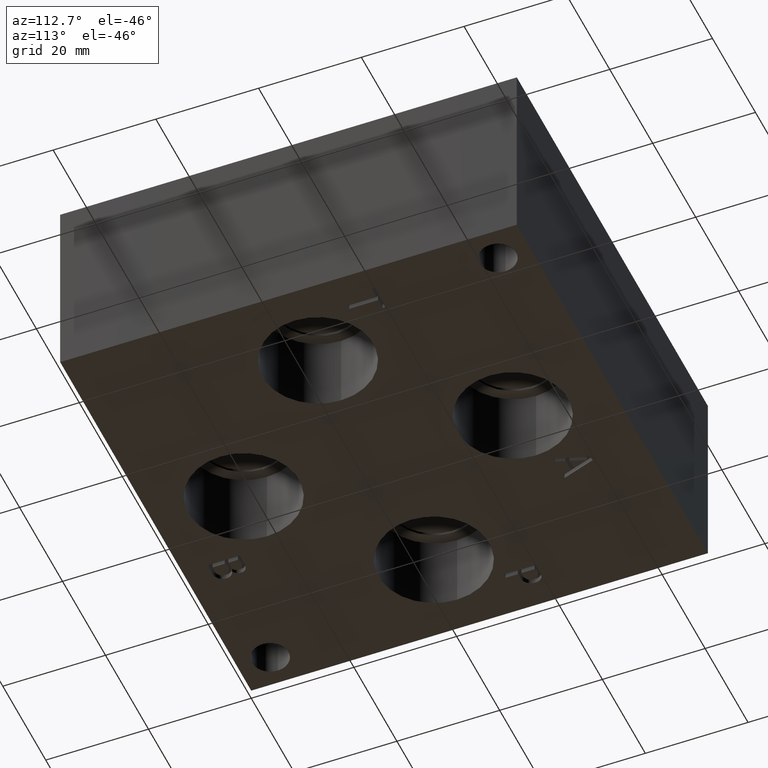
[diagram: clean part render]
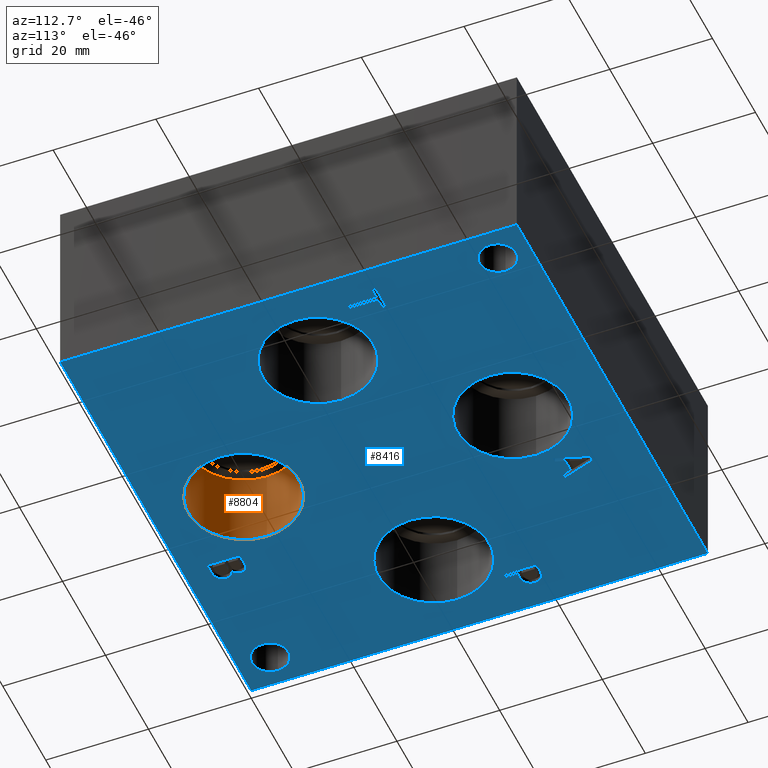
[diagram: same view with the hole feature highlighted: cylindrical wall and planar end face, labeled with their STEP entity ids]
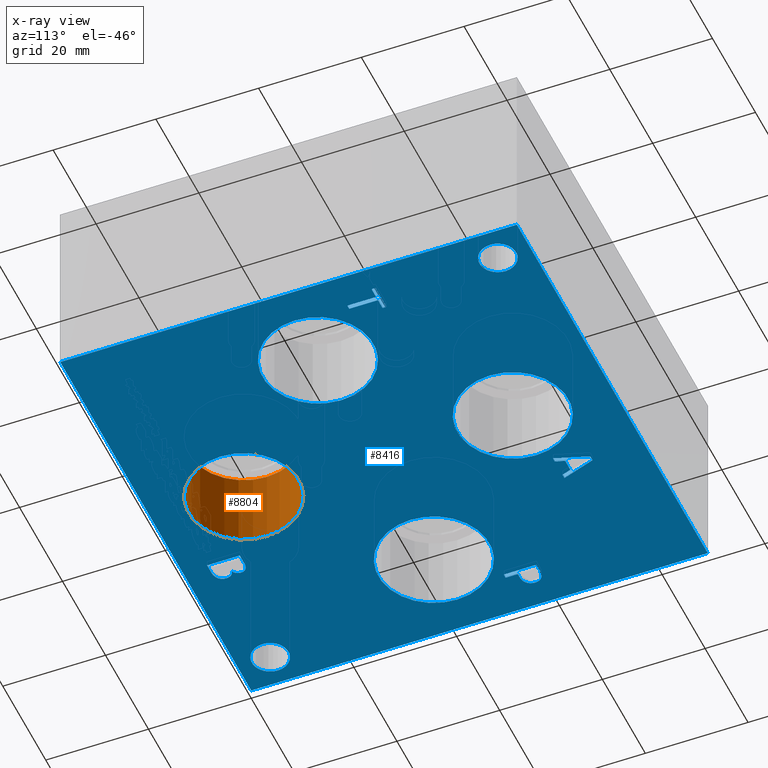
[diagram: x-ray of the same camera — body ghosted, the hole faces saturated]
A machine part, auxiliary view. The highlighted faces form one hole feature of diameter 21.59 mm: the cylindrical wall (entity #8804, orange) and its adjacent planar end face (entity #8416, blue) — they share a circular edge in the B-rep.
The next image is the same camera in x-ray (body ghosted, the hole faces saturated) — the bore reads through the body.
Wall:
#18=CYLINDRICAL_SURFACE('',#9158,10.795);
#56=CIRCLE('',#8876,10.795);
#57=CIRCLE('',#8877,10.795);
#74=CIRCLE('',#9155,10.795);
#75=CIRCLE('',#9156,10.795);
#886=FACE_OUTER_BOUND('',#1381,.T.);
#1381=EDGE_LOOP('',(#7663,#7664,#7665,#7666,#7667,#7668));
#2263=LINE('',#14941,#3119);
#3119=VECTOR('',#10681,10.795);
#3471=VERTEX_POINT('',#11164);
#3472=VERTEX_POINT('',#11165);
#4170=VERTEX_POINT('',#14934);
#4171=VERTEX_POINT('',#14935);
#4312=EDGE_CURVE('',#3471,#3472,#56,.T.);
#4313=EDGE_CURVE('',#3472,#3471,#57,.T.);
#5358=EDGE_CURVE('',#4170,#4171,#74,.T.);
#5359=EDGE_CURVE('',#4171,#4170,#75,.T.);
#5361=EDGE_CURVE('',#3472,#4171,#2263,.T.);
#7663=ORIENTED_EDGE('',*,*,#4312,.F.);
#7664=ORIENTED_EDGE('',*,*,#4313,.F.);
#7665=ORIENTED_EDGE('',*,*,#5361,.T.);
#7666=ORIENTED_EDGE('',*,*,#5358,.F.);
#7667=ORIENTED_EDGE('',*,*,#5359,.F.);
#7668=ORIENTED_EDGE('',*,*,#5361,.F.);
#8804=ADVANCED_FACE('',(#886),#18,.F.);
#8876=AXIS2_PLACEMENT_3D('',#11166,#9339,#9340);
#8877=AXIS2_PLACEMENT_3D('',#11167,#9341,#9342);
#9155=AXIS2_PLACEMENT_3D('',#14936,#10673,#10674);
#9156=AXIS2_PLACEMENT_3D('',#14937,#10675,#10676);
#9158=AXIS2_PLACEMENT_3D('',#14940,#10679,#10680);
#9339=DIRECTION('center_axis',(0.,0.,1.));
#9340=DIRECTION('ref_axis',(1.,0.,0.));
#9341=DIRECTION('center_axis',(0.,0.,1.));
#9342=DIRECTION('ref_axis',(1.,0.,0.));
#10673=DIRECTION('center_axis',(0.,0.,-1.));
#10674=DIRECTION('ref_axis',(1.,0.,0.));
#10675=DIRECTION('center_axis',(0.,0.,-1.));
#10676=DIRECTION('ref_axis',(1.,0.,0.));
#10679=DIRECTION('center_axis',(0.,0.,-1.));
#10680=DIRECTION('ref_axis',(1.,0.,0.));
#10681=DIRECTION('',(0.,0.,1.));
#11164=CARTESIAN_POINT('',(56.0324,17.4625,0.));
#11165=CARTESIAN_POINT('',(34.4424,17.4625,0.));
#11166=CARTESIAN_POINT('Origin',(45.2374,17.4625,0.));
#11167=CARTESIAN_POINT('Origin',(45.2374,17.4625,0.));
#14934=CARTESIAN_POINT('',(56.0324,17.4625,15.367));
#14935=CARTESIAN_POINT('',(34.4424,17.4625,15.367));
#14936=CARTESIAN_POINT('Origin',(45.2374,17.4625,15.367));
#14937=CARTESIAN_POINT('Origin',(45.2374,17.4625,15.367));
#14940=CARTESIAN_POINT('Origin',(45.2374,17.4625,7.6835));
#14941=CARTESIAN_POINT('',(34.4424,17.4625,7.6835));
End face:
#52=CIRCLE('',#8872,10.795);
#53=CIRCLE('',#8873,10.795);
#54=CIRCLE('',#8874,10.795);
#55=CIRCLE('',#8875,10.795);
#56=CIRCLE('',#8876,10.795);
#57=CIRCLE('',#8877,10.795);
#58=CIRCLE('',#8878,10.795);
#59=CIRCLE('',#8879,10.795);
#60=CIRCLE('',#8880,3.5687);
#61=CIRCLE('',#8881,3.5687);
#141=FACE_BOUND('',#949,.T.);
#142=FACE_BOUND('',#950,.T.);
#143=FACE_BOUND('',#951,.T.);
#144=FACE_BOUND('',#952,.T.);
#145=FACE_BOUND('',#953,.T.);
#146=FACE_BOUND('',#954,.T.);
#147=FACE_BOUND('',#955,.T.);
#148=FACE_BOUND('',#956,.T.);
#149=FACE_BOUND('',#957,.T.);
#150=FACE_BOUND('',#958,.T.);
#213=PLANE('',#8871);
#498=FACE_OUTER_BOUND('',#948,.T.);
#948=EDGE_LOOP('',(#5540,#5541,#5542,#5543));
#949=EDGE_LOOP('',(#5544,#5545,#5546,#5547,#5548,#5549,#5550,#5551));
#950=EDGE_LOOP('',(#5552,#5553));
#951=EDGE_LOOP('',(#5554,#5555));
#952=EDGE_LOOP('',(#5556,#5557));
#953=EDGE_LOOP('',(#5558,#5559));
#954=EDGE_LOOP('',(#5560));
#955=EDGE_LOOP('',(#5561));
#956=EDGE_LOOP('',(#5562,#5563,#5564,#5565,#5566,#5567,#5568,#5569,#5570,
#5571));
#957=EDGE_LOOP('',(#5572,#5573,#5574,#5575,#5576,#5577,#5578,#5579));
#958=EDGE_LOOP('',(#5580,#5581,#5582,#5583,#5584,#5585,#5586,#5587,#5588));
#1459=LINE('',#11067,#2315);
#1462=LINE('',#11073,#2318);
#1465=LINE('',#11079,#2321);
#1468=LINE('',#11085,#2324);
#1471=LINE('',#11091,#2327);
#1475=LINE('',#11134,#2331);
#1476=LINE('',#11136,#2332);
#1477=LINE('',#11138,#2333);
#1478=LINE('',#11139,#2334);
#1479=LINE('',#11142,#2335);
#1480=LINE('',#11144,#2336);
#1481=LINE('',#11146,#2337);
#1482=LINE('',#11148,#2338);
#1483=LINE('',#11150,#2339);
#1484=LINE('',#11152,#2340);
#1485=LINE('',#11154,#2341);
#1486=LINE('',#11155,#2342);
#1487=LINE('',#11193,#2343);
#1488=LINE('',#11195,#2344);
#1489=LINE('',#11197,#2345);
#1490=LINE('',#11213,#2346);
#1491=LINE('',#11216,#2347);
#1492=LINE('',#11218,#2348);
#1493=LINE('',#11220,#2349);
#1494=LINE('',#11222,#2350);
#1495=LINE('',#11224,#2351);
#1496=LINE('',#11226,#2352);
#1497=LINE('',#11228,#2353);
#1498=LINE('',#11229,#2354);
#2315=VECTOR('',#9291,10.);
#2318=VECTOR('',#9296,10.);
#2321=VECTOR('',#9301,10.);
#2324=VECTOR('',#9306,10.);
#2327=VECTOR('',#9311,10.);
#2331=VECTOR('',#9319,10.);
#2332=VECTOR('',#9320,10.);
#2333=VECTOR('',#9321,10.);
#2334=VECTOR('',#9322,10.);
#2335=VECTOR('',#9323,10.);
#2336=VECTOR('',#9324,10.);
#2337=VECTOR('',#9325,10.);
#2338=VECTOR('',#9326,10.);
#2339=VECTOR('',#9327,10.);
#2340=VECTOR('',#9328,10.);
#2341=VECTOR('',#9329,10.);
#2342=VECTOR('',#9330,10.);
#2343=VECTOR('',#9351,10.);
#2344=VECTOR('',#9352,10.);
#2345=VECTOR('',#9353,10.);
#2346=VECTOR('',#9354,10.);
#2347=VECTOR('',#9355,10.);
#2348=VECTOR('',#9356,10.);
#2349=VECTOR('',#9357,10.);
#2350=VECTOR('',#9358,10.);
#2351=VECTOR('',#9359,10.);
#2352=VECTOR('',#9360,10.);
#2353=VECTOR('',#9361,10.);
#2354=VECTOR('',#9362,10.);
#3163=B_SPLINE_CURVE_WITH_KNOTS('',2,(#11034,#11035,#11036,#11037),
 .UNSPECIFIED.,.F.,.F.,(3,1,3),(0.,1.,2.),.UNSPECIFIED.);
#3165=B_SPLINE_CURVE_WITH_KNOTS('',2,(#11055,#11056,#11057,#11058),
 .UNSPECIFIED.,.F.,.F.,(3,1,3),(0.,1.,2.),.UNSPECIFIED.);
#3167=B_SPLINE_CURVE_WITH_KNOTS('',2,(#11104,#11105,#11106,#11107),
 .UNSPECIFIED.,.F.,.F.,(3,1,3),(0.,1.,2.),.UNSPECIFIED.);
#3169=B_SPLINE_CURVE_WITH_KNOTS('',2,(#11122,#11123,#11124,#11125),
 .UNSPECIFIED.,.F.,.F.,(3,1,3),(0.,1.,2.),.UNSPECIFIED.);
#3171=B_SPLINE_CURVE_WITH_KNOTS('',2,(#11178,#11179,#11180,#11181),
 .UNSPECIFIED.,.F.,.F.,(3,1,3),(0.,1.,2.),.UNSPECIFIED.);
#3172=B_SPLINE_CURVE_WITH_KNOTS('',2,(#11183,#11184,#11185,#11186),
 .UNSPECIFIED.,.F.,.F.,(3,1,3),(0.,1.,2.),.UNSPECIFIED.);
#3173=B_SPLINE_CURVE_WITH_KNOTS('',2,(#11188,#11189,#11190,#11191),
 .UNSPECIFIED.,.F.,.F.,(3,1,3),(0.,1.,2.),.UNSPECIFIED.);
#3174=B_SPLINE_CURVE_WITH_KNOTS('',2,(#11199,#11200,#11201,#11202),
 .UNSPECIFIED.,.F.,.F.,(3,1,3),(0.,1.,2.),.UNSPECIFIED.);
#3175=B_SPLINE_CURVE_WITH_KNOTS('',2,(#11204,#11205,#11206,#11207),
 .UNSPECIFIED.,.F.,.F.,(3,1,3),(0.,1.,2.),.UNSPECIFIED.);
#3176=B_SPLINE_CURVE_WITH_KNOTS('',2,(#11209,#11210,#11211,#11212),
 .UNSPECIFIED.,.F.,.F.,(3,1,3),(0.,1.,2.),.UNSPECIFIED.);
#3437=VERTEX_POINT('',#11032);
#3438=VERTEX_POINT('',#11033);
#3441=VERTEX_POINT('',#11054);
#3443=VERTEX_POINT('',#11066);
#3445=VERTEX_POINT('',#11072);
#3447=VERTEX_POINT('',#11078);
#3449=VERTEX_POINT('',#11084);
#3451=VERTEX_POINT('',#11090);
#3453=VERTEX_POINT('',#11103);
#3455=VERTEX_POINT('',#11132);
#3456=VERTEX_POINT('',#11133);
#3457=VERTEX_POINT('',#11135);
#3458=VERTEX_POINT('',#11137);
#3459=VERTEX_POINT('',#11140);
#3460=VERTEX_POINT('',#11141);
#3461=VERTEX_POINT('',#11143);
#3462=VERTEX_POINT('',#11145);
#3463=VERTEX_POINT('',#11147);
#3464=VERTEX_POINT('',#11149);
#3465=VERTEX_POINT('',#11151);
#3466=VERTEX_POINT('',#11153);
#3467=VERTEX_POINT('',#11156);
#3468=VERTEX_POINT('',#11157);
#3469=VERTEX_POINT('',#11160);
#3470=VERTEX_POINT('',#11161);
#3471=VERTEX_POINT('',#11164);
#3472=VERTEX_POINT('',#11165);
#3473=VERTEX_POINT('',#11168);
#3474=VERTEX_POINT('',#11169);
#3475=VERTEX_POINT('',#11172);
#3476=VERTEX_POINT('',#11174);
#3477=VERTEX_POINT('',#11176);
#3478=VERTEX_POINT('',#11177);
#3479=VERTEX_POINT('',#11182);
#3480=VERTEX_POINT('',#11187);
#3481=VERTEX_POINT('',#11192);
#3482=VERTEX_POINT('',#11194);
#3483=VERTEX_POINT('',#11196);
#3484=VERTEX_POINT('',#11198);
#3485=VERTEX_POINT('',#11203);
#3486=VERTEX_POINT('',#11208);
#3487=VERTEX_POINT('',#11214);
#3488=VERTEX_POINT('',#11215);
#3489=VERTEX_POINT('',#11217);
#3490=VERTEX_POINT('',#11219);
#3491=VERTEX_POINT('',#11221);
#3492=VERTEX_POINT('',#11223);
#3493=VERTEX_POINT('',#11225);
#3494=VERTEX_POINT('',#11227);
#4269=EDGE_CURVE('',#3437,#3438,#3163,.T.);
#4273=EDGE_CURVE('',#3441,#3437,#3165,.T.);
#4276=EDGE_CURVE('',#3443,#3441,#1459,.T.);
#4279=EDGE_CURVE('',#3445,#3443,#1462,.T.);
#4282=EDGE_CURVE('',#3447,#3445,#1465,.T.);
#4285=EDGE_CURVE('',#3449,#3447,#1468,.T.);
#4288=EDGE_CURVE('',#3451,#3449,#1471,.T.);
#4291=EDGE_CURVE('',#3453,#3451,#3167,.T.);
#4294=EDGE_CURVE('',#3438,#3453,#3169,.T.);
#4296=EDGE_CURVE('',#3455,#3456,#1475,.T.);
#4297=EDGE_CURVE('',#3457,#3455,#1476,.T.);
#4298=EDGE_CURVE('',#3458,#3457,#1477,.T.);
#4299=EDGE_CURVE('',#3456,#3458,#1478,.T.);
#4300=EDGE_CURVE('',#3459,#3460,#1479,.T.);
#4301=EDGE_CURVE('',#3460,#3461,#1480,.T.);
#4302=EDGE_CURVE('',#3461,#3462,#1481,.T.);
#4303=EDGE_CURVE('',#3462,#3463,#1482,.T.);
#4304=EDGE_CURVE('',#3463,#3464,#1483,.T.);
#4305=EDGE_CURVE('',#3464,#3465,#1484,.T.);
#4306=EDGE_CURVE('',#3465,#3466,#1485,.T.);
#4307=EDGE_CURVE('',#3466,#3459,#1486,.T.);
#4308=EDGE_CURVE('',#3467,#3468,#52,.T.);
#4309=EDGE_CURVE('',#3468,#3467,#53,.T.);
#4310=EDGE_CURVE('',#3469,#3470,#54,.T.);
#4311=EDGE_CURVE('',#3470,#3469,#55,.T.);
#4312=EDGE_CURVE('',#3471,#3472,#56,.T.);
#4313=EDGE_CURVE('',#3472,#3471,#57,.T.);
#4314=EDGE_CURVE('',#3473,#3474,#58,.T.);
#4315=EDGE_CURVE('',#3474,#3473,#59,.T.);
#4316=EDGE_CURVE('',#3475,#3475,#60,.T.);
#4317=EDGE_CURVE('',#3476,#3476,#61,.T.);
#4318=EDGE_CURVE('',#3477,#3478,#3171,.T.);
#4319=EDGE_CURVE('',#3478,#3479,#3172,.T.);
#4320=EDGE_CURVE('',#3479,#3480,#3173,.T.);
#4321=EDGE_CURVE('',#3480,#3481,#1487,.T.);
#4322=EDGE_CURVE('',#3481,#3482,#1488,.T.);
#4323=EDGE_CURVE('',#3482,#3483,#1489,.T.);
#4324=EDGE_CURVE('',#3483,#3484,#3174,.T.);
#4325=EDGE_CURVE('',#3484,#3485,#3175,.T.);
#4326=EDGE_CURVE('',#3485,#3486,#3176,.T.);
#4327=EDGE_CURVE('',#3486,#3477,#1490,.T.);
#4328=EDGE_CURVE('',#3487,#3488,#1491,.T.);
#4329=EDGE_CURVE('',#3488,#3489,#1492,.T.);
#4330=EDGE_CURVE('',#3489,#3490,#1493,.T.);
#4331=EDGE_CURVE('',#3490,#3491,#1494,.T.);
#4332=EDGE_CURVE('',#3491,#3492,#1495,.T.);
#4333=EDGE_CURVE('',#3492,#3493,#1496,.T.);
#4334=EDGE_CURVE('',#3493,#3494,#1497,.T.);
#4335=EDGE_CURVE('',#3494,#3487,#1498,.T.);
#5540=ORIENTED_EDGE('',*,*,#4296,.F.);
#5541=ORIENTED_EDGE('',*,*,#4297,.F.);
#5542=ORIENTED_EDGE('',*,*,#4298,.F.);
#5543=ORIENTED_EDGE('',*,*,#4299,.F.);
#5544=ORIENTED_EDGE('',*,*,#4300,.T.);
#5545=ORIENTED_EDGE('',*,*,#4301,.T.);
#5546=ORIENTED_EDGE('',*,*,#4302,.T.);
#5547=ORIENTED_EDGE('',*,*,#4303,.T.);
#5548=ORIENTED_EDGE('',*,*,#4304,.T.);
#5549=ORIENTED_EDGE('',*,*,#4305,.T.);
#5550=ORIENTED_EDGE('',*,*,#4306,.T.);
#5551=ORIENTED_EDGE('',*,*,#4307,.T.);
#5552=ORIENTED_EDGE('',*,*,#4308,.T.);
#5553=ORIENTED_EDGE('',*,*,#4309,.T.);
#5554=ORIENTED_EDGE('',*,*,#4310,.T.);
#5555=ORIENTED_EDGE('',*,*,#4311,.T.);
#5556=ORIENTED_EDGE('',*,*,#4312,.T.);
#5557=ORIENTED_EDGE('',*,*,#4313,.T.);
#5558=ORIENTED_EDGE('',*,*,#4314,.T.);
#5559=ORIENTED_EDGE('',*,*,#4315,.T.);
#5560=ORIENTED_EDGE('',*,*,#4316,.T.);
#5561=ORIENTED_EDGE('',*,*,#4317,.T.);
#5562=ORIENTED_EDGE('',*,*,#4318,.T.);
#5563=ORIENTED_EDGE('',*,*,#4319,.T.);
#5564=ORIENTED_EDGE('',*,*,#4320,.T.);
#5565=ORIENTED_EDGE('',*,*,#4321,.T.);
#5566=ORIENTED_EDGE('',*,*,#4322,.T.);
#5567=ORIENTED_EDGE('',*,*,#4323,.T.);
#5568=ORIENTED_EDGE('',*,*,#4324,.T.);
#5569=ORIENTED_EDGE('',*,*,#4325,.T.);
#5570=ORIENTED_EDGE('',*,*,#4326,.T.);
#5571=ORIENTED_EDGE('',*,*,#4327,.T.);
#5572=ORIENTED_EDGE('',*,*,#4328,.T.);
#5573=ORIENTED_EDGE('',*,*,#4329,.T.);
#5574=ORIENTED_EDGE('',*,*,#4330,.T.);
#5575=ORIENTED_EDGE('',*,*,#4331,.T.);
#5576=ORIENTED_EDGE('',*,*,#4332,.T.);
#5577=ORIENTED_EDGE('',*,*,#4333,.T.);
#5578=ORIENTED_EDGE('',*,*,#4334,.T.);
#5579=ORIENTED_EDGE('',*,*,#4335,.T.);
#5580=ORIENTED_EDGE('',*,*,#4269,.T.);
#5581=ORIENTED_EDGE('',*,*,#4294,.T.);
#5582=ORIENTED_EDGE('',*,*,#4291,.T.);
#5583=ORIENTED_EDGE('',*,*,#4288,.T.);
#5584=ORIENTED_EDGE('',*,*,#4285,.T.);
#5585=ORIENTED_EDGE('',*,*,#4282,.T.);
#5586=ORIENTED_EDGE('',*,*,#4279,.T.);
#5587=ORIENTED_EDGE('',*,*,#4276,.T.);
#5588=ORIENTED_EDGE('',*,*,#4273,.T.);
#8416=ADVANCED_FACE('',(#498,#141,#142,#143,#144,#145,#146,#147,#148,#149,
#150),#213,.F.);
#8871=AXIS2_PLACEMENT_3D('',#11131,#9317,#9318);
#8872=AXIS2_PLACEMENT_3D('',#11158,#9331,#9332);
#8873=AXIS2_PLACEMENT_3D('',#11159,#9333,#9334);
#8874=AXIS2_PLACEMENT_3D('',#11162,#9335,#9336);
#8875=AXIS2_PLACEMENT_3D('',#11163,#9337,#9338);
#8876=AXIS2_PLACEMENT_3D('',#11166,#9339,#9340);
#8877=AXIS2_PLACEMENT_3D('',#11167,#9341,#9342);
#8878=AXIS2_PLACEMENT_3D('',#11170,#9343,#9344);
#8879=AXIS2_PLACEMENT_3D('',#11171,#9345,#9346);
#8880=AXIS2_PLACEMENT_3D('',#11173,#9347,#9348);
#8881=AXIS2_PLACEMENT_3D('',#11175,#9349,#9350);
#9291=DIRECTION('',(-1.,0.,0.));
#9296=DIRECTION('',(-3.14708893596576E-15,1.,0.));
#9301=DIRECTION('',(1.,0.,0.));
#9306=DIRECTION('',(3.75218139804999E-15,-1.,0.));
#9311=DIRECTION('',(1.,1.24172909575756E-14,0.));
#9317=DIRECTION('center_axis',(0.,0.,1.));
#9318=DIRECTION('ref_axis',(1.,0.,0.));
#9319=DIRECTION('',(1.,0.,0.));
#9320=DIRECTION('',(0.,-1.,0.));
#9321=DIRECTION('',(-1.,0.,0.));
#9322=DIRECTION('',(0.,1.,0.));
#9323=DIRECTION('',(1.,0.,0.));
#9324=DIRECTION('',(-0.319451166674571,0.94760273960677,0.));
#9325=DIRECTION('',(-1.,0.,0.));
#9326=DIRECTION('',(-0.319451166674564,-0.947602739606772,0.));
#9327=DIRECTION('',(1.,9.97689851504626E-15,0.));
#9328=DIRECTION('',(0.308774363938379,0.951135317488763,0.));
#9329=DIRECTION('',(1.,0.,0.));
#9330=DIRECTION('',(0.308774363938385,-0.951135317488761,0.));
#9331=DIRECTION('center_axis',(0.,0.,1.));
#9332=DIRECTION('ref_axis',(1.,0.,0.));
#9333=DIRECTION('center_axis',(0.,0.,1.));
#9334=DIRECTION('ref_axis',(1.,0.,0.));
#9335=DIRECTION('center_axis',(0.,0.,1.));
#9336=DIRECTION('ref_axis',(1.,0.,0.));
#9337=DIRECTION('center_axis',(0.,0.,1.));
#9338=DIRECTION('ref_axis',(1.,0.,0.));
#9339=DIRECTION('center_axis',(0.,0.,1.));
#9340=DIRECTION('ref_axis',(1.,0.,0.));
#9341=DIRECTION('center_axis',(0.,0.,1.));
#9342=DIRECTION('ref_axis',(1.,0.,0.));
#9343=DIRECTION('center_axis',(0.,0.,1.));
#9344=DIRECTION('ref_axis',(1.,0.,0.));
#9345=DIRECTION('center_axis',(0.,0.,1.));
#9346=DIRECTION('ref_axis',(1.,0.,0.));
#9347=DIRECTION('center_axis',(0.,0.,1.));
#9348=DIRECTION('ref_axis',(1.,0.,0.));
#9349=DIRECTION('center_axis',(0.,0.,1.));
#9350=DIRECTION('ref_axis',(1.,0.,0.));
#9351=DIRECTION('',(1.,0.,0.));
#9352=DIRECTION('',(-3.49676548440641E-15,1.,0.));
#9353=DIRECTION('',(-1.,0.,0.));
#9354=DIRECTION('',(0.,-1.,0.));
#9355=DIRECTION('',(1.,0.,0.));
#9356=DIRECTION('',(-3.17280044688052E-15,1.,0.));
#9357=DIRECTION('',(1.,0.,0.));
#9358=DIRECTION('',(0.,1.,0.));
#9359=DIRECTION('',(-1.,-1.73992282570867E-15,0.));
#9360=DIRECTION('',(0.,-1.,0.));
#9361=DIRECTION('',(1.,0.,0.));
#9362=DIRECTION('',(3.17280044688052E-15,-1.,0.));
#11032=CARTESIAN_POINT('',(5.95463279764059,58.9889681439707,0.));
#11033=CARTESIAN_POINT('',(5.198190345468,57.470937372604,0.));
#11034=CARTESIAN_POINT('Ctrl Pts',(5.95463279764059,58.9889681439707,0.));
#11035=CARTESIAN_POINT('Ctrl Pts',(5.59956797315141,58.7471123939564,0.));
#11036=CARTESIAN_POINT('Ctrl Pts',(5.198190345468,58.0009616758269,0.));
#11037=CARTESIAN_POINT('Ctrl Pts',(5.198190345468,57.470937372604,0.));
#11054=CARTESIAN_POINT('',(7.61674784561168,59.3851999046326,0.));
#11055=CARTESIAN_POINT('Ctrl Pts',(7.61674784561168,59.3851999046326,0.));
#11056=CARTESIAN_POINT('Ctrl Pts',(7.05070247323762,59.3851999046326,0.));
#11057=CARTESIAN_POINT('Ctrl Pts',(6.25823895191395,59.1999486918556,0.));
#11058=CARTESIAN_POINT('Ctrl Pts',(5.95463279764059,58.9889681439707,0.));
#11066=CARTESIAN_POINT('',(9.21196662230219,59.3851999046326,0.));
#11067=CARTESIAN_POINT('',(26.8309833111511,59.3851999046326,0.));
#11072=CARTESIAN_POINT('',(9.21196662230221,53.0352,0.));
#11073=CARTESIAN_POINT('',(9.21196662230222,48.7426,0.));
#11078=CARTESIAN_POINT('',(8.36804443076271,53.0352,0.));
#11079=CARTESIAN_POINT('',(26.4090222153814,53.0352,0.));
#11084=CARTESIAN_POINT('',(8.3680444307627,55.4022988299279,0.));
#11085=CARTESIAN_POINT('',(8.36804443076273,49.9261494149639,0.));
#11090=CARTESIAN_POINT('',(7.65276891476276,55.4022988299279,0.));
#11091=CARTESIAN_POINT('',(26.0513844573813,55.4022988299281,0.));
#11103=CARTESIAN_POINT('',(5.75394398379889,56.0609698086904,0.));
#11104=CARTESIAN_POINT('Ctrl Pts',(5.75394398379889,56.0609698086904,0.));
#11105=CARTESIAN_POINT('Ctrl Pts',(6.08327947318016,55.7367801863307,0.));
#11106=CARTESIAN_POINT('Ctrl Pts',(6.9735144679139,55.4022988299279,0.));
#11107=CARTESIAN_POINT('Ctrl Pts',(7.65276891476276,55.4022988299279,0.));
#11122=CARTESIAN_POINT('Ctrl Pts',(5.198190345468,57.470937372604,0.));
#11123=CARTESIAN_POINT('Ctrl Pts',(5.198190345468,57.0592680108774,0.));
#11124=CARTESIAN_POINT('Ctrl Pts',(5.49150476569819,56.3182631597695,0.));
#11125=CARTESIAN_POINT('Ctrl Pts',(5.75394398379889,56.0609698086904,0.));
#11131=CARTESIAN_POINT('Origin',(44.45,44.45,0.));
#11132=CARTESIAN_POINT('',(0.,0.,0.));
#11133=CARTESIAN_POINT('',(88.9,0.,0.));
#11134=CARTESIAN_POINT('',(0.,0.,0.));
#11135=CARTESIAN_POINT('',(0.,88.9,0.));
#11136=CARTESIAN_POINT('',(0.,88.9,0.));
#11137=CARTESIAN_POINT('',(88.9,88.9,0.));
#11138=CARTESIAN_POINT('',(88.9,88.9,0.));
#11139=CARTESIAN_POINT('',(88.9,0.,0.));
#11140=CARTESIAN_POINT('',(31.72435301059,72.39,0.));
#11141=CARTESIAN_POINT('',(32.5785669361726,72.39,0.));
#11142=CARTESIAN_POINT('',(38.087176505295,72.39,0.));
#11143=CARTESIAN_POINT('',(30.4378862551944,78.7399999046326,0.));
#11144=CARTESIAN_POINT('',(37.4131989827361,58.0488078234152,0.));
#11145=CARTESIAN_POINT('',(29.3984211168348,78.7399999046326,0.));
#11146=CARTESIAN_POINT('',(37.4439431275972,78.7399999046326,0.));
#11147=CARTESIAN_POINT('',(27.2577404358565,72.39,0.));
#11148=CARTESIAN_POINT('',(24.9764098102045,65.6227836729455,0.));
#11149=CARTESIAN_POINT('',(28.1479754305903,72.39,0.));
#11150=CARTESIAN_POINT('',(35.8538702179281,72.3900000000001,0.));
#11151=CARTESIAN_POINT('',(28.7243125370075,74.1653241224459,0.));
#11152=CARTESIAN_POINT('',(24.8223097958233,62.1457621071908,0.));
#11153=CARTESIAN_POINT('',(31.1480159041728,74.1653241224459,0.));
#11154=CARTESIAN_POINT('',(36.5871562685038,74.1653241224459,0.));
#11155=CARTESIAN_POINT('',(36.1456225310734,58.7709108520825,0.));
#11156=CARTESIAN_POINT('',(82.2198,42.8752,0.));
#11157=CARTESIAN_POINT('',(60.6298,42.8752,0.));
#11158=CARTESIAN_POINT('Origin',(71.4248,42.8752,0.));
#11159=CARTESIAN_POINT('Origin',(71.4248,42.8752,0.));
#11160=CARTESIAN_POINT('',(56.0324,69.85,0.));
#11161=CARTESIAN_POINT('',(34.4424,69.85,0.));
#11162=CARTESIAN_POINT('Origin',(45.2374,69.85,0.));
#11163=CARTESIAN_POINT('Origin',(45.2374,69.85,0.));
#11164=CARTESIAN_POINT('',(56.0324,17.4625,0.));
#11165=CARTESIAN_POINT('',(34.4424,17.4625,0.));
#11166=CARTESIAN_POINT('Origin',(45.2374,17.4625,0.));
#11167=CARTESIAN_POINT('Origin',(45.2374,17.4625,0.));
#11168=CARTESIAN_POINT('',(28.2702,42.8752,0.));
#11169=CARTESIAN_POINT('',(6.6802,42.8752,0.));
#11170=CARTESIAN_POINT('Origin',(17.4752,42.8752,0.));
#11171=CARTESIAN_POINT('Origin',(17.4752,42.8752,0.));
#11172=CARTESIAN_POINT('',(2.7813,6.35,0.));
#11173=CARTESIAN_POINT('Origin',(6.35,6.35,0.));
#11174=CARTESIAN_POINT('',(78.9813,82.55,0.));
#11175=CARTESIAN_POINT('Origin',(82.55,82.55,0.));
#11176=CARTESIAN_POINT('',(28.7757712072233,8.29256477680545,0.));
#11177=CARTESIAN_POINT('',(27.5870759252378,6.71278360117968,0.));
#11178=CARTESIAN_POINT('Ctrl Pts',(28.7757712072233,8.29256477680545,0.));
#11179=CARTESIAN_POINT('Ctrl Pts',(28.2097258348493,8.13818876615798,0.));
#11180=CARTESIAN_POINT('Ctrl Pts',(27.5870759252378,7.3199959097264,0.));
#11181=CARTESIAN_POINT('Ctrl Pts',(27.5870759252378,6.71278360117968,0.));
#11182=CARTESIAN_POINT('',(28.2457469040004,5.27708670215821,0.));
#11183=CARTESIAN_POINT('Ctrl Pts',(27.5870759252378,6.71278360117968,0.));
#11184=CARTESIAN_POINT('Ctrl Pts',(27.5870759252378,6.2393638351941,0.));
#11185=CARTESIAN_POINT('Ctrl Pts',(27.9472866167486,5.51379658515101,0.));
#11186=CARTESIAN_POINT('Ctrl Pts',(28.2457469040004,5.27708670215821,0.));
#11187=CARTESIAN_POINT('',(30.0725296966621,4.7625,0.));
#11188=CARTESIAN_POINT('Ctrl Pts',(28.2457469040004,5.27708670215821,0.));
#11189=CARTESIAN_POINT('Ctrl Pts',(28.6059575955111,4.99920988299277,0.));
#11190=CARTESIAN_POINT('Ctrl Pts',(29.4241504519427,4.7625,0.));
#11191=CARTESIAN_POINT('Ctrl Pts',(30.0725296966621,4.7625,0.));
#11192=CARTESIAN_POINT('',(31.8941666223022,4.7625,0.));
#11193=CARTESIAN_POINT('',(37.2612648483311,4.7625,0.));
#11194=CARTESIAN_POINT('',(31.8941666223022,11.1124999046326,0.));
#11195=CARTESIAN_POINT('',(31.8941666223021,24.60625,0.));
#11196=CARTESIAN_POINT('',(30.2114681062448,11.1124999046326,0.));
#11197=CARTESIAN_POINT('',(38.1720833111511,11.1124999046326,0.));
#11198=CARTESIAN_POINT('',(28.5442071912521,10.8552065535534,0.));
#11199=CARTESIAN_POINT('Ctrl Pts',(30.2114681062448,11.1124999046326,0.));
#11200=CARTESIAN_POINT('Ctrl Pts',(29.5322136593959,11.1124999046326,0.));
#11201=CARTESIAN_POINT('Ctrl Pts',(28.8529592125471,11.0250201652657,0.));
#11202=CARTESIAN_POINT('Ctrl Pts',(28.5442071912521,10.8552065535534,0.));
#11203=CARTESIAN_POINT('',(27.8855362124896,9.68194887263268,0.));
#11204=CARTESIAN_POINT('Ctrl Pts',(28.5442071912521,10.8552065535534,0.));
#11205=CARTESIAN_POINT('Ctrl Pts',(28.1994341008061,10.6751012077981,0.));
#11206=CARTESIAN_POINT('Ctrl Pts',(27.8855362124896,10.0833265003161,0.));
#11207=CARTESIAN_POINT('Ctrl Pts',(27.8855362124896,9.68194887263268,0.));
#11208=CARTESIAN_POINT('',(28.7757712072233,8.32343997893494,0.));
#11209=CARTESIAN_POINT('Ctrl Pts',(27.8855362124896,9.68194887263268,0.));
#11210=CARTESIAN_POINT('Ctrl Pts',(27.8855362124896,9.23425844175501,0.));
#11211=CARTESIAN_POINT('Ctrl Pts',(28.3589559784752,8.52412879277665,0.));
#11212=CARTESIAN_POINT('Ctrl Pts',(28.7757712072233,8.32343997893494,0.));
#11213=CARTESIAN_POINT('',(28.7757712072233,26.3867199894675,0.));
#11214=CARTESIAN_POINT('',(81.155634728547,53.0352,0.));
#11215=CARTESIAN_POINT('',(81.9995569200865,53.0352,0.));
#11216=CARTESIAN_POINT('',(62.8028173642735,53.0352,0.));
#11217=CARTESIAN_POINT('',(81.9995569200865,58.6339033194816,0.));
#11218=CARTESIAN_POINT('',(81.9995569200865,48.7426000000001,0.));
#11219=CARTESIAN_POINT('',(84.1299458670215,58.6339033194816,0.));
#11220=CARTESIAN_POINT('',(63.2247784600432,58.6339033194816,0.));
#11221=CARTESIAN_POINT('',(84.1299458670215,59.3851999046326,0.));
#11222=CARTESIAN_POINT('',(84.1299458670215,51.5419516597408,0.));
#11223=CARTESIAN_POINT('',(79.0252457816119,59.3851999046326,0.));
#11224=CARTESIAN_POINT('',(64.2899729335108,59.3851999046326,0.));
#11225=CARTESIAN_POINT('',(79.0252457816119,58.6339033194816,0.));
#11226=CARTESIAN_POINT('',(79.0252457816119,51.9175999523163,0.));
#11227=CARTESIAN_POINT('',(81.155634728547,58.6339033194816,0.));
#11228=CARTESIAN_POINT('',(61.737622890806,58.6339033194816,0.));
#11229=CARTESIAN_POINT('',(81.155634728547,51.5419516597408,0.));